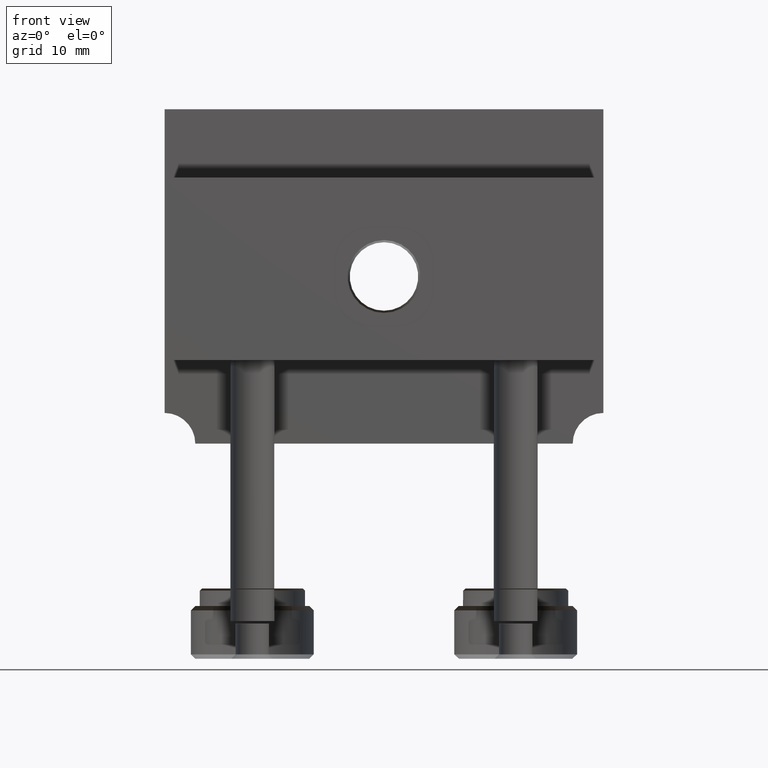
[diagram: clean part render]
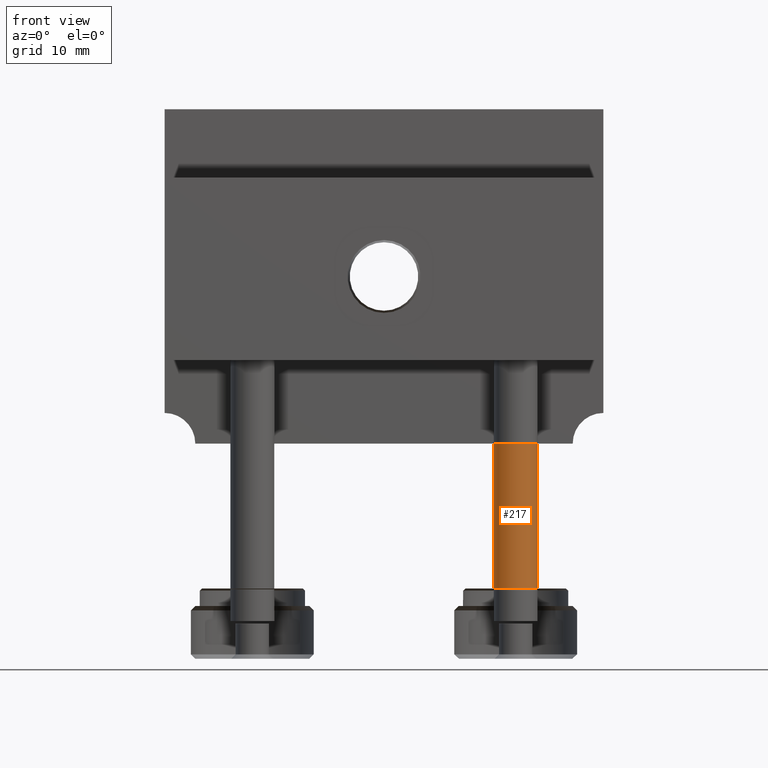
[diagram: same view with one face highlighted and labeled with its STEP entity id]
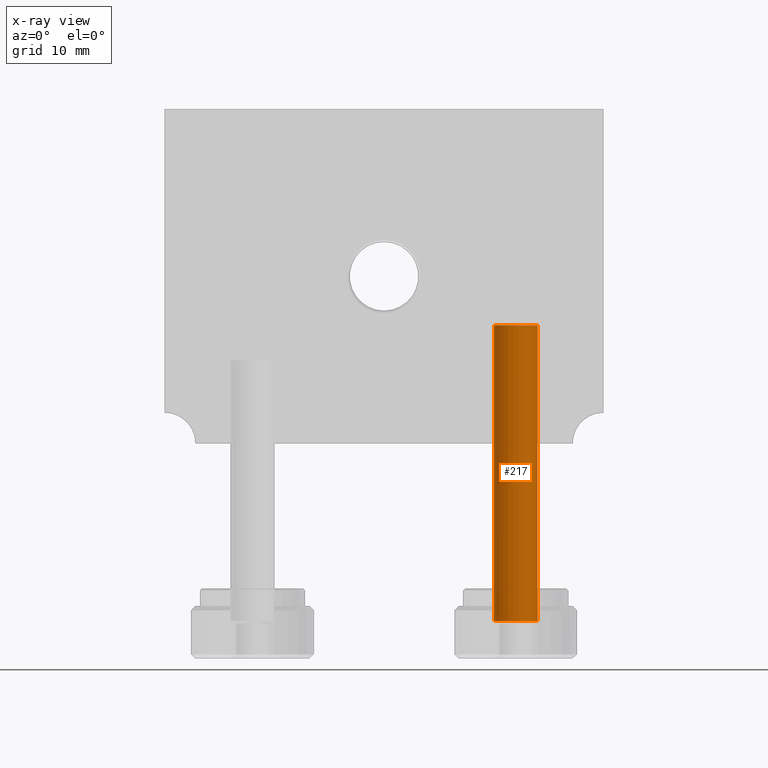
[diagram: x-ray of the same camera — body ghosted, the highlighted face saturated]
A machine part, front view. The second image highlights one B-rep face of the part: STEP entity #217.
The next image is the same camera in x-ray: the body ghosted, the highlighted face saturated — about 0% of this face is hidden behind the body in this view.
In plain terms, the highlighted cylindrical surface (bore or boss wall) has radius 2.5 mm, axis along (-0, 0, -1).
Its self-contained STEP definition (entity closure, byte-faithful):
#76 = EDGE_LOOP ( 'NONE', ( #1228 ) ) ;
#217 = ADVANCED_FACE ( 'NONE', ( #319, #810 ), #1154, .T. ) ;
#228 = AXIS2_PLACEMENT_3D ( 'NONE', #986, #1469, #391 ) ;
#269 = EDGE_LOOP ( 'NONE', ( #859 ) ) ;
#319 = FACE_OUTER_BOUND ( 'NONE', #269, .T. ) ;
#327 = CARTESIAN_POINT ( 'NONE',  ( 30.36376350985538153, 28.54850150571978418, -10.55231363071788842 ) ) ;
#330 = DIRECTION ( 'NONE',  ( -1.853941369809416389E-16, 1.711127877354227672E-16, -1.000000000000000000 ) ) ;
#391 = DIRECTION ( 'NONE',  ( -1.000000000000000000, 0.000000000000000000, 0.000000000000000000 ) ) ;
#476 = AXIS2_PLACEMENT_3D ( 'NONE', #919, #1056, #828 ) ;
#810 = FACE_OUTER_BOUND ( 'NONE', #76, .T. ) ;
#828 = DIRECTION ( 'NONE',  ( -1.000000000000000000, 0.000000000000000000, 0.000000000000000000 ) ) ;
#859 = ORIENTED_EDGE ( 'NONE', *, *, #1334, .T. ) ;
#895 = DIRECTION ( 'NONE',  ( -1.000000000000000000, 0.000000000000000000, 0.000000000000000000 ) ) ;
#904 = CIRCLE ( 'NONE', #228, 2.500000000000002220 ) ;
#910 = CARTESIAN_POINT ( 'NONE',  ( 32.86376350985538863, 28.54850150571977707, 24.14768636928211265 ) ) ;
#919 = CARTESIAN_POINT ( 'NONE',  ( 32.86376350985538153, 28.54850150571978418, -10.55231363071788842 ) ) ;
#929 = CIRCLE ( 'NONE', #476, 2.500000000000002220 ) ;
#986 = CARTESIAN_POINT ( 'NONE',  ( 32.86376350985538863, 28.54850150571977707, 23.14768636928210555 ) ) ;
#1027 = VERTEX_POINT ( 'NONE', #327 ) ;
#1056 = DIRECTION ( 'NONE',  ( 1.853941369809416389E-16, -1.711127877354227672E-16, 1.000000000000000000 ) ) ;
#1154 = CYLINDRICAL_SURFACE ( 'NONE', #1424, 2.500000000000002220 ) ;
#1168 = CARTESIAN_POINT ( 'NONE',  ( 30.36376350985538863, 28.54850150571977707, 23.14768636928210555 ) ) ;
#1228 = ORIENTED_EDGE ( 'NONE', *, *, #1539, .T. ) ;
#1290 = VERTEX_POINT ( 'NONE', #1168 ) ;
#1334 = EDGE_CURVE ( 'NONE', #1027, #1027, #929, .T. ) ;
#1424 = AXIS2_PLACEMENT_3D ( 'NONE', #910, #330, #895 ) ;
#1469 = DIRECTION ( 'NONE',  ( -1.853941369809416389E-16, 1.711127877354227672E-16, -1.000000000000000000 ) ) ;
#1539 = EDGE_CURVE ( 'NONE', #1290, #1290, #904, .T. ) ;